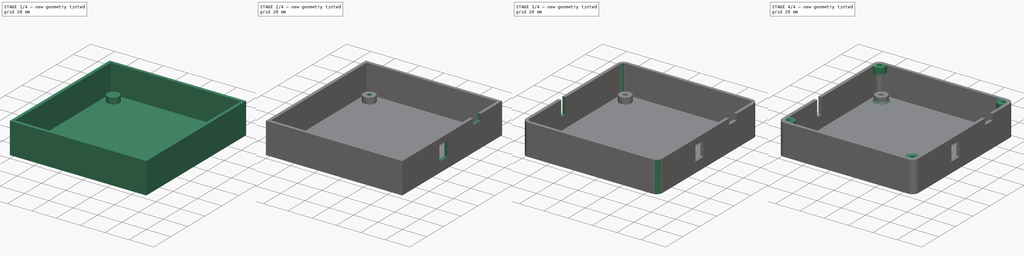
[diagram: build sequence overview — one tinted view per stage of 4, left to right]
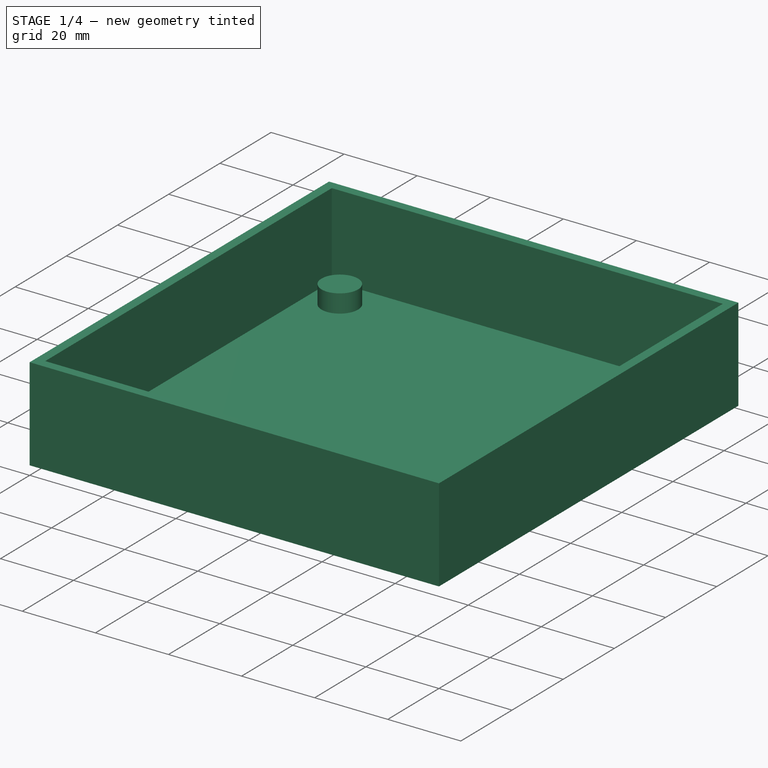
[diagram: stage 1 of 4 — iso view after this stage's code; geometry added in this stage tinted green]
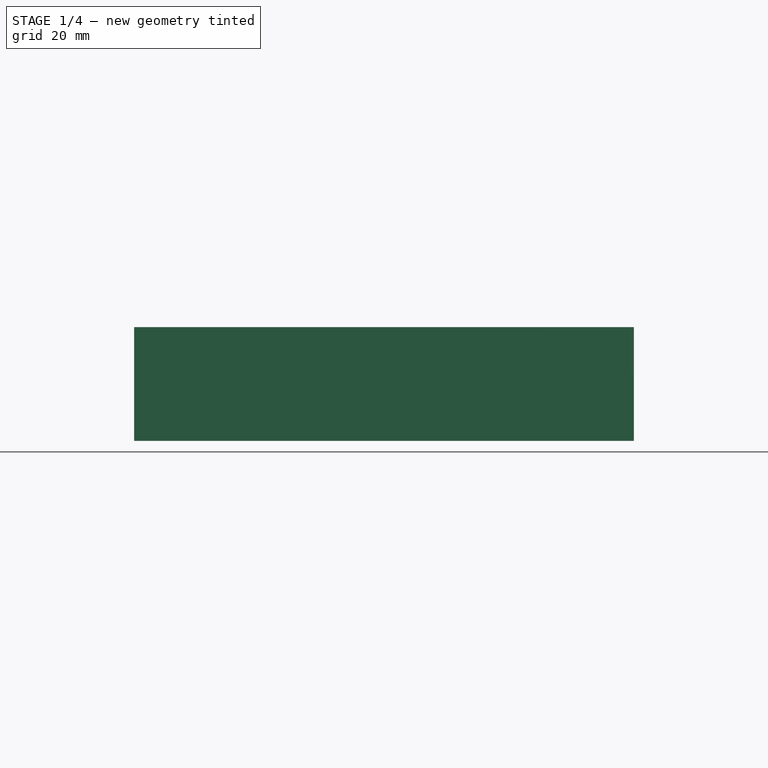
[diagram: stage 1 of 4 — front view after this stage's code; geometry added in this stage tinted green]
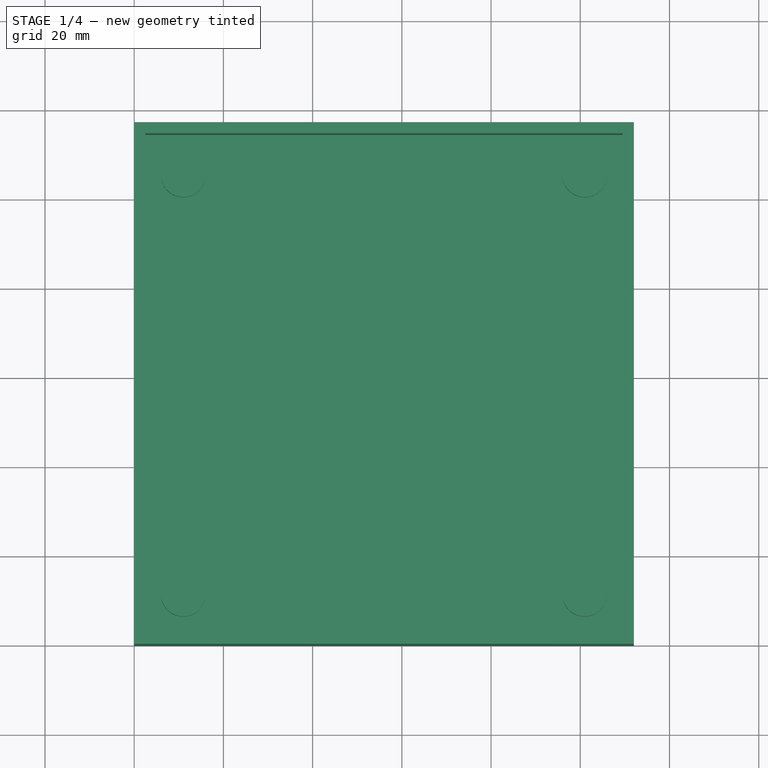
[diagram: stage 1 of 4 — top view after this stage's code; geometry added in this stage tinted green]
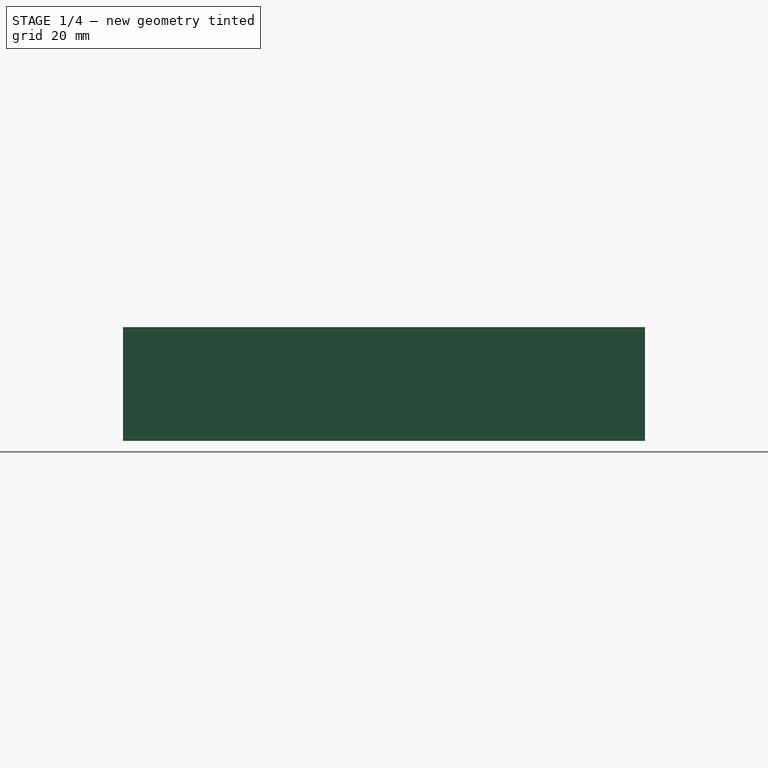
[diagram: stage 1 of 4 — right view after this stage's code; geometry added in this stage tinted green]
FCSTD DOCUMENT  (FreeCAD 0.18R16146 (Git))
Label: case
License: All rights reserved
LicenseURL: http://en.wikipedia.org/wiki/All_rights_reserved
objects: Sketcher::SketchObject×10, PartDesign::Pocket×7, PartDesign::Pad×3, PartDesign::Fillet×3, PartDesign::Body×1
note: 34 computed .brp shape members not serialized (recipe doc carries the construction recipe); baked Part::Feature solids carry a one-line shape summary decoded from their .brp

FEATURE [Sketcher::SketchObject] Sketch
  MapMode = 5
  Support = -> [XY_Plane]
  sketch-geometry (4):
    g0: LineSegment StartX=0 StartY=0 StartZ=0 EndX=112 EndY=0 EndZ=0
    g1: LineSegment StartX=112 StartY=0 StartZ=0 EndX=112 EndY=117 EndZ=0
    g2: LineSegment StartX=112 StartY=117 StartZ=0 EndX=0 EndY=117 EndZ=0
    g3: LineSegment StartX=0 StartY=117 StartZ=0 EndX=0 EndY=0 EndZ=0
  constraints (11):
    c: Coincident(g0,g1)
    c: Coincident(g1,g2)
    c: Coincident(g2,g3)
    c: Coincident(g3,g0)
    c: Horizontal(g0)
    c: Horizontal(g2)
    c: Vertical(g1)
    c: Vertical(g3)
    c: Coincident(g0,g-1)
    c: DistanceX(g0,g0) = 112
    c: DistanceY(g1,g1) = 117
FEATURE [PartDesign::Pad] Pad
  Length = 25.5
  Length2 = 100
  Profile = -> Sketch
  Type = 0
FEATURE [Sketcher::SketchObject] Sketch001
  MapMode = 5
  Placement = pos=(0,0,25.5) rot=(0,0,1;0rad)
  Support = -> [Pad]
  sketch-geometry (4):
    g0: LineSegment StartX=2.5 StartY=114.5 StartZ=0 EndX=109.5 EndY=114.5 EndZ=0
    g1: LineSegment StartX=109.5 StartY=114.5 StartZ=0 EndX=109.5 EndY=2.5 EndZ=0
    g2: LineSegment StartX=109.5 StartY=2.5 StartZ=0 EndX=2.5 EndY=2.5 EndZ=0
    g3: LineSegment StartX=2.5 StartY=2.5 StartZ=0 EndX=2.5 EndY=114.5 EndZ=0
  constraints (12):
    c: Coincident(g0,g1)
    c: Coincident(g1,g2)
    c: Coincident(g2,g3)
    c: Coincident(g3,g0)
    c: Horizontal(g0)
    c: Horizontal(g2)
    c: Vertical(g1)
    c: Vertical(g3)
    c: DistanceX(g2,g2) = 107
    c: DistanceY(g1,g1) = 112
    c: DistanceY(g2) = 2.5
    c: DistanceX(g2) = 2.5
FEATURE [PartDesign::Pocket] Pocket
  BaseFeature = -> Pad
  Length = 23
  Length2 = 100
  Profile = -> Sketch001
  Type = 0
FEATURE [Sketcher::SketchObject] Sketch002
  MapMode = 5
  Placement = pos=(0,0,2.5) rot=(0,0,1;0rad)
  Support = -> [Pocket]
  sketch-geometry (8):
    g0: LineSegment [constr] StartX=11 StartY=105.5 StartZ=0 EndX=101 EndY=105.5 EndZ=0
    g1: LineSegment [constr] StartX=101 StartY=105.5 StartZ=0 EndX=101 EndY=11.5 EndZ=0
    g2: LineSegment [constr] StartX=101 StartY=11.5 StartZ=0 EndX=11 EndY=11.5 EndZ=0
    g3: LineSegment [constr] StartX=11 StartY=11.5 StartZ=0 EndX=11 EndY=105.5 EndZ=0
    g4: Circle CenterX=11 CenterY=105.5 CenterZ=0 NormalX=0 NormalY=0 NormalZ=1 AngleXU=0 Radius=5
    g5: Circle CenterX=101 CenterY=105.5 CenterZ=0 NormalX=0 NormalY=0 NormalZ=1 AngleXU=0 Radius=5
    g6: Circle CenterX=101 CenterY=11.5 CenterZ=0 NormalX=0 NormalY=0 NormalZ=1 AngleXU=0 Radius=5
    g7: Circle CenterX=11 CenterY=11.5 CenterZ=0 NormalX=0 NormalY=0 NormalZ=1 AngleXU=0 Radius=5
  constraints (20):
    c: Coincident(g0,g1)
    c: Coincident(g1,g2)
    c: Coincident(g2,g3)
    c: Coincident(g3,g0)
    c: Horizontal(g0)
    c: Horizontal(g2)
    c: Vertical(g1)
    c: Vertical(g3)
    c: DistanceX(g2,g2) = 90
    c: DistanceY(g1,g1) = 94
    c: DistanceX(g2) = 11
    c: DistanceY(g2) = 11.5
    c: Coincident(g4,g0)
    c: Coincident(g5,g0)
    c: Coincident(g6,g1)
    c: Coincident(g7,g2)
    c: Equal(g7,g6)
    c: Equal(g6,g5)
    c: Equal(g5,g4)
    c: Radius(g5) = 5
FEATURE [PartDesign::Pad] Pad001
  BaseFeature = -> Pocket
  Length = 5
  Length2 = 100
  Profile = -> Sketch002
  Type = 0
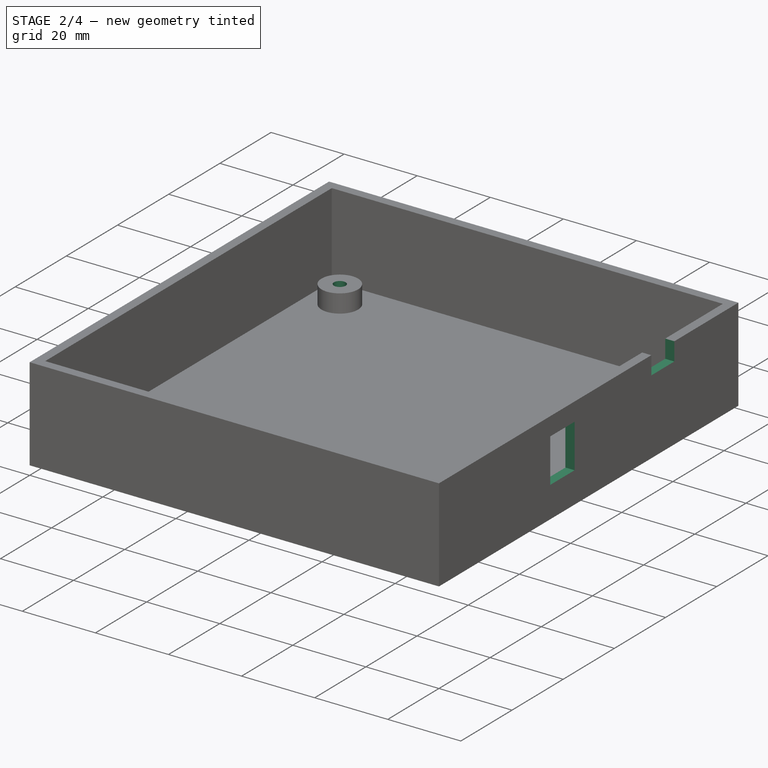
[diagram: stage 2 of 4 — iso view after this stage's code; geometry added in this stage tinted green]
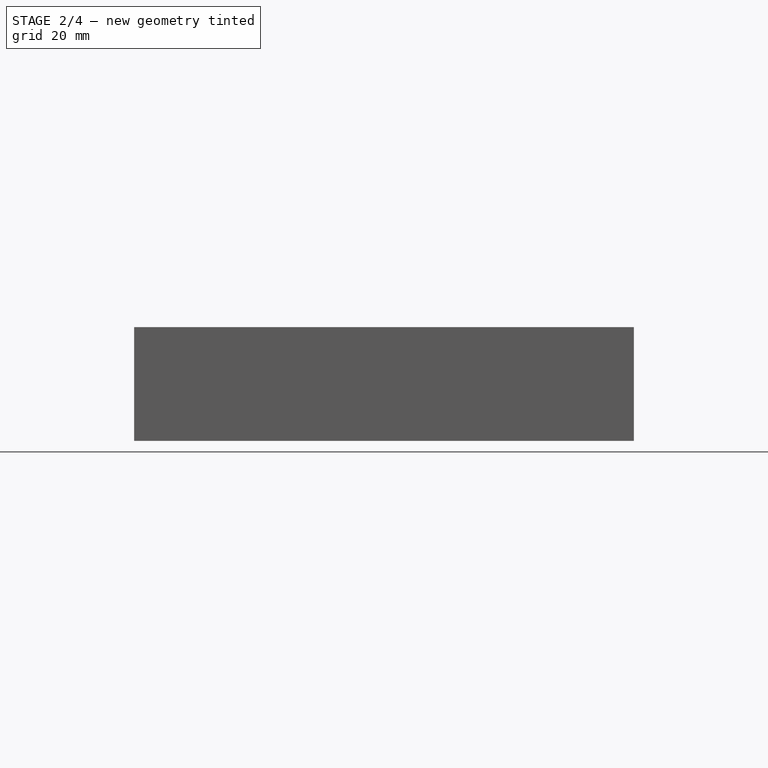
[diagram: stage 2 of 4 — front view after this stage's code; geometry added in this stage tinted green]
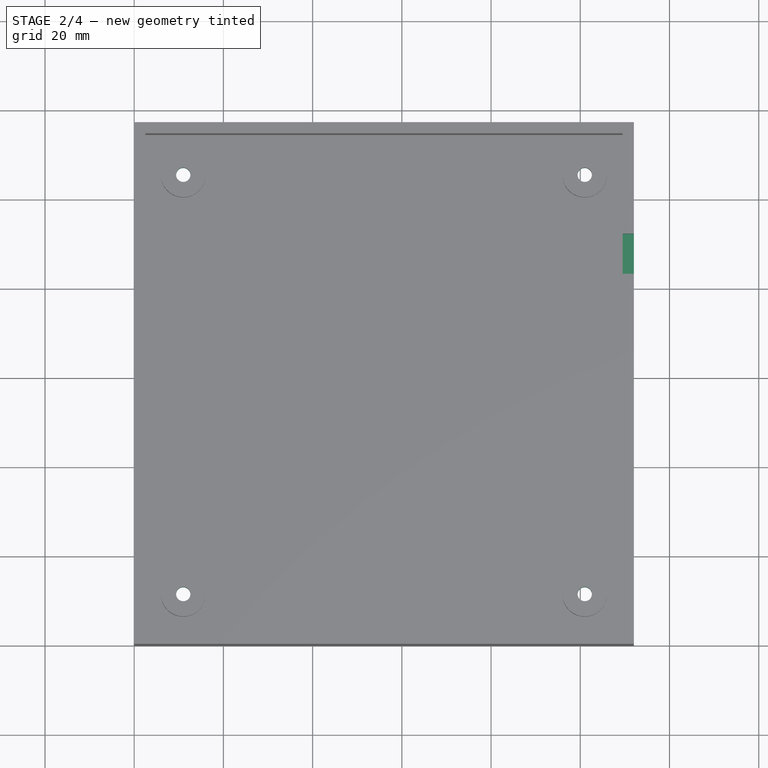
[diagram: stage 2 of 4 — top view after this stage's code; geometry added in this stage tinted green]
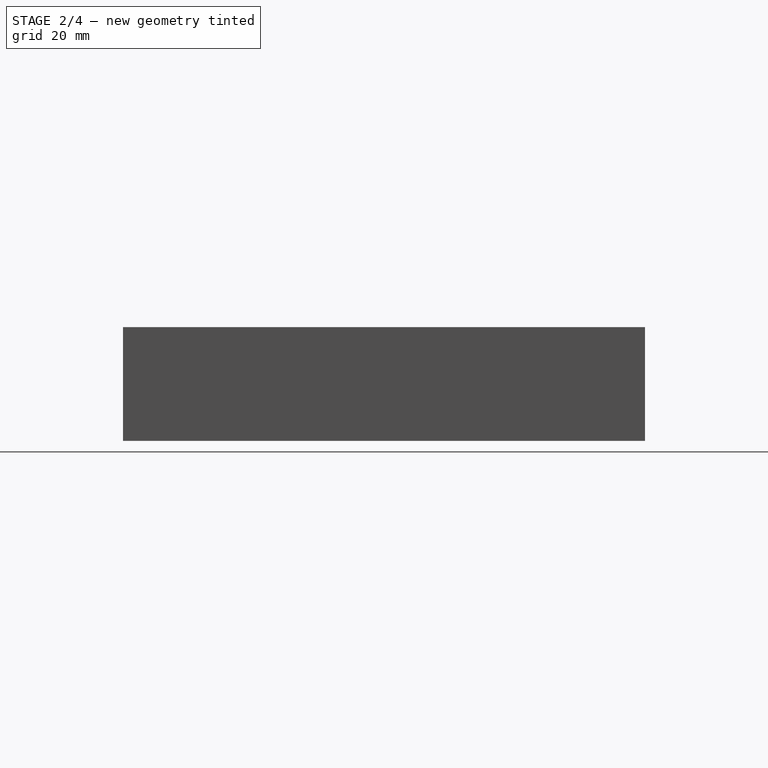
[diagram: stage 2 of 4 — right view after this stage's code; geometry added in this stage tinted green]
FEATURE [Sketcher::SketchObject] Sketch003
  MapMode = 5
  Placement = pos=(0,0,0) rot=(1,0,0;3.14159rad)
  Support = -> [Pad001]
  sketch-geometry (8):
    g0: LineSegment [constr] StartX=11 StartY=-11.5 StartZ=0 EndX=101 EndY=-11.5 EndZ=0
    g1: LineSegment [constr] StartX=101 StartY=-11.5 StartZ=0 EndX=101 EndY=-105.5 EndZ=0
    g2: LineSegment [constr] StartX=101 StartY=-105.5 StartZ=0 EndX=11 EndY=-105.5 EndZ=0
    g3: LineSegment [constr] StartX=11 StartY=-105.5 StartZ=0 EndX=11 EndY=-11.5 EndZ=0
    g4: Circle CenterX=11 CenterY=-11.5 CenterZ=0 NormalX=0 NormalY=0 NormalZ=1 AngleXU=0 Radius=1.6
    g5: Circle CenterX=101 CenterY=-11.5 CenterZ=0 NormalX=0 NormalY=0 NormalZ=1 AngleXU=0 Radius=1.6
    g6: Circle CenterX=101 CenterY=-105.5 CenterZ=0 NormalX=0 NormalY=0 NormalZ=1 AngleXU=0 Radius=1.6
    g7: Circle CenterX=11 CenterY=-105.5 CenterZ=0 NormalX=0 NormalY=0 NormalZ=1 AngleXU=0 Radius=1.6
  constraints (20):
    c: Coincident(g0,g1)
    c: Coincident(g1,g2)
    c: Coincident(g2,g3)
    c: Coincident(g3,g0)
    c: Horizontal(g0)
    c: Horizontal(g2)
    c: Vertical(g1)
    c: Vertical(g3)
    c: DistanceX(g0,g0) = 90
    c: DistanceY(g1,g1) = 94
    c: DistanceY(g0,g-1) = 11.5
    c: DistanceX(g-1,g0) = 11
    c: Coincident(g4,g0)
    c: Coincident(g5,g0)
    c: Coincident(g6,g1)
    c: Coincident(g7,g2)
    c: Equal(g7,g4)
    c: Equal(g4,g5)
    c: Equal(g5,g6)
    c: Radius(g5) = 1.6
FEATURE [PartDesign::Pocket] Pocket001
  BaseFeature = -> Pad001
  Length = 5
  Length2 = 100
  Profile = -> Sketch003
  Type = 1
FEATURE [Sketcher::SketchObject] Sketch004
  MapMode = 5
  Placement = pos=(0,0,0) rot=(1,0,0;3.14159rad)
  Support = -> [Pocket001]
  sketch-geometry (32):
    g0: LineSegment [constr] StartX=11 StartY=-11.5 StartZ=0 EndX=101 EndY=-11.5 EndZ=0
    g1: LineSegment [constr] StartX=101 StartY=-11.5 StartZ=0 EndX=101 EndY=-105.5 EndZ=0
    g2: LineSegment [constr] StartX=101 StartY=-105.5 StartZ=0 EndX=11 EndY=-105.5 EndZ=0
    g3: LineSegment [constr] StartX=11 StartY=-105.5 StartZ=0 EndX=11 EndY=-11.5 EndZ=0
    g4: LineSegment StartX=13.0207 StartY=-15 StartZ=0 EndX=15.0415 EndY=-11.5 EndZ=0
    g5: LineSegment StartX=15.0415 StartY=-11.5 StartZ=0 EndX=13.0207 EndY=-8 EndZ=0
    g6: LineSegment StartX=13.0207 StartY=-8 StartZ=0 EndX=8.97927 EndY=-8 EndZ=0
    g7: LineSegment StartX=8.97927 StartY=-8 StartZ=0 EndX=6.95855 EndY=-11.5 EndZ=0
    g8: LineSegment StartX=6.95855 StartY=-11.5 StartZ=0 EndX=8.97927 EndY=-15 EndZ=0
    g9: LineSegment StartX=8.97927 StartY=-15 StartZ=0 EndX=13.0207 EndY=-15 EndZ=0
    g10: Circle [constr] CenterX=11 CenterY=-11.5 CenterZ=0 NormalX=0 NormalY=0 NormalZ=1 AngleXU=0 Radius=4.04145
    g11: LineSegment StartX=103.021 StartY=-15 StartZ=0 EndX=105.041 EndY=-11.5 EndZ=0
    g12: LineSegment StartX=105.041 StartY=-11.5 StartZ=0 EndX=103.021 EndY=-8 EndZ=0
    g13: LineSegment StartX=103.021 StartY=-8 StartZ=0 EndX=98.9793 EndY=-8 EndZ=0
    g14: LineSegment StartX=98.9793 StartY=-8 StartZ=0 EndX=96.9585 EndY=-11.5 EndZ=0
    g15: LineSegment StartX=96.9585 StartY=-11.5 StartZ=0 EndX=98.9793 EndY=-15 EndZ=0
    g16: LineSegment StartX=98.9793 StartY=-15 StartZ=0 EndX=103.021 EndY=-15 EndZ=0
    g17: Circle [constr] CenterX=101 CenterY=-11.5 CenterZ=0 NormalX=0 NormalY=0 NormalZ=1 AngleXU=0 Radius=4.04145
    g18: LineSegment StartX=103.021 StartY=-109 StartZ=0 EndX=105.041 EndY=-105.5 EndZ=0
    g19: LineSegment StartX=105.041 StartY=-105.5 StartZ=0 EndX=103.021 EndY=-102 EndZ=0
    g20: LineSegment StartX=103.021 StartY=-102 StartZ=0 EndX=98.9793 EndY=-102 EndZ=0
    g21: LineSegment StartX=98.9793 StartY=-102 StartZ=0 EndX=96.9585 EndY=-105.5 EndZ=0
    g22: LineSegment StartX=96.9585 StartY=-105.5 StartZ=0 EndX=98.9793 EndY=-109 EndZ=0
    g23: LineSegment StartX=98.9793 StartY=-109 StartZ=0 EndX=103.021 EndY=-109 EndZ=0
    g24: Circle [constr] CenterX=101 CenterY=-105.5 CenterZ=0 NormalX=0 NormalY=0 NormalZ=1 AngleXU=0 Radius=4.04145
    g25: LineSegment StartX=13.0207 StartY=-109 StartZ=0 EndX=15.0415 EndY=-105.5 EndZ=0
    g26: LineSegment StartX=15.0415 StartY=-105.5 StartZ=0 EndX=13.0207 EndY=-102 EndZ=0
    g27: LineSegment StartX=13.0207 StartY=-102 StartZ=0 EndX=8.97927 EndY=-102 EndZ=0
    g28: LineSegment StartX=8.97927 StartY=-102 StartZ=0 EndX=6.95855 EndY=-105.5 EndZ=0
    g29: LineSegment StartX=6.95855 StartY=-105.5 StartZ=0 EndX=8.97927 EndY=-109 EndZ=0
    g30: LineSegment StartX=8.97927 StartY=-109 StartZ=0 EndX=13.0207 EndY=-109 EndZ=0
    g31: Circle [constr] CenterX=11 CenterY=-105.5 CenterZ=0 NormalX=0 NormalY=0 NormalZ=1 AngleXU=0 Radius=4.04145
  constraints (76):
    c: Coincident(g0,g1)
    c: Coincident(g1,g2)
    c: Coincident(g2,g3)
    c: Coincident(g3,g0)
    c: Horizontal(g0)
    c: Horizontal(g2)
    c: Vertical(g1)
    c: Vertical(g3)
    c: DistanceX(g0,g0) = 90
    c: DistanceY(g1,g1) = 94
    c: DistanceY(g0,g-1) = 11.5
    c: DistanceX(g-1,g0) = 11
    c: Coincident(g4,g5)
    c: Coincident(g5,g6)
    c: Coincident(g6,g7)
    c: Coincident(g7,g8)
    c: Coincident(g8,g9)
    c: Coincident(g9,g4)
    c: Equal(g4, g5-g9) x5
    c: PointOnObject(g4,g10)
    c: PointOnObject(g5,g10)
    c: PointOnObject(g6,g10)
    c: PointOnObject(g7,g10)
    c: PointOnObject(g8,g10)
    c: PointOnObject(g9,g10)
    c: Coincident(g10,g0)
    c: Coincident(g11,g12)
    c: Coincident(g12,g13)
    c: Coincident(g13,g14)
    c: Coincident(g14,g15)
    c: Coincident(g15,g16)
    c: Coincident(g16,g11)
    c: Equal(g11, g12-g16) x5
    c: PointOnObject(g11,g17)
    c: PointOnObject(g12,g17)
    c: PointOnObject(g13,g17)
    c: PointOnObject(g14,g17)
    c: PointOnObject(g15,g17)
    c: PointOnObject(g16,g17)
    c: Coincident(g17,g0)
    c: Coincident(g18,g19)
    c: Coincident(g19,g20)
    c: Coincident(g20,g21)
    c: Coincident(g21,g22)
    c: Coincident(g22,g23)
    c: Coincident(g23,g18)
    c: Equal(g18, g19-g23) x5
    c: PointOnObject(g18,g24)
    c: PointOnObject(g19,g24)
    c: PointOnObject(g20,g24)
    c: PointOnObject(g21,g24)
    c: PointOnObject(g22,g24)
    c: PointOnObject(g23,g24)
    c: Coincident(g24,g1)
    c: Coincident(g25,g26)
    c: Coincident(g26,g27)
    c: Coincident(g27,g28)
    c: Coincident(g28,g29)
    c: Coincident(g29,g30)
    c: Coincident(g30,g25)
    c: Equal(g25, g26-g30) x5
    c: PointOnObject(g25,g31)
    c: PointOnObject(g26,g31)
    c: PointOnObject(g27,g31)
    c: PointOnObject(g28,g31)
    c: PointOnObject(g29,g31)
    c: PointOnObject(g30,g31)
    c: Coincident(g31,g2)
    c: Equal(g10,g17)
    c: Equal(g17,g24)
    c: Equal(g24,g31)
    c: Horizontal(g9)
    c: Horizontal(g16)
    c: Horizontal(g20)
    c: Horizontal(g27)
    c: Distance(g15,g11) = 7
FEATURE [PartDesign::Pocket] Pocket002
  BaseFeature = -> Pocket001
  Length = 1.5
  Length2 = 100
  Profile = -> Sketch004
  Type = 0
FEATURE [Sketcher::SketchObject] Sketch005
  MapMode = 5
  Placement = pos=(112,0,0) rot=(0.57735,0.57735,0.57735;2.0944rad)
  Support = -> [Pocket002]
  sketch-geometry (8):
    g0: LineSegment StartX=43.5 StartY=20.5 StartZ=0 EndX=53 EndY=20.5 EndZ=0
    g1: LineSegment StartX=53 StartY=20.5 StartZ=0 EndX=53 EndY=8.5 EndZ=0
    g2: LineSegment StartX=53 StartY=8.5 StartZ=0 EndX=43.5 EndY=8.5 EndZ=0
    g3: LineSegment StartX=43.5 StartY=8.5 StartZ=0 EndX=43.5 EndY=20.5 EndZ=0
    g4: LineSegment StartX=83 StartY=25.5 StartZ=0 EndX=92 EndY=25.5 EndZ=0
    g5: LineSegment StartX=92 StartY=25.5 StartZ=0 EndX=92 EndY=20.5 EndZ=0
    g6: LineSegment StartX=92 StartY=20.5 StartZ=0 EndX=83 EndY=20.5 EndZ=0
    g7: LineSegment StartX=83 StartY=20.5 StartZ=0 EndX=83 EndY=25.5 EndZ=0
  constraints (24):
    c: Coincident(g0,g1)
    c: Coincident(g1,g2)
    c: Coincident(g2,g3)
    c: Coincident(g3,g0)
    c: Horizontal(g0)
    c: Horizontal(g2)
    c: Vertical(g1)
    c: Vertical(g3)
    c: DistanceX(g-1,g2) = 43.5
    c: DistanceX(g2,g2) = 9.5
    c: DistanceY(g2) = 8.5
    c: DistanceY(g3,g3) = 12
    c: Coincident(g4,g5)
    c: Coincident(g5,g6)
    c: Coincident(g6,g7)
    c: Coincident(g7,g4)
    c: Horizontal(g4)
    c: Horizontal(g6)
    c: Vertical(g5)
    c: Vertical(g7)
    c: DistanceX(g6) = 83
    c: DistanceX(g6,g6) = 9
    c: DistanceY(g5,g5) = 5
    c: DistanceY(g6) = 20.5
FEATURE [PartDesign::Pocket] Pocket003
  BaseFeature = -> Pocket002
  Length = 5
  Length2 = 100
  Profile = -> Sketch005
  Type = 0
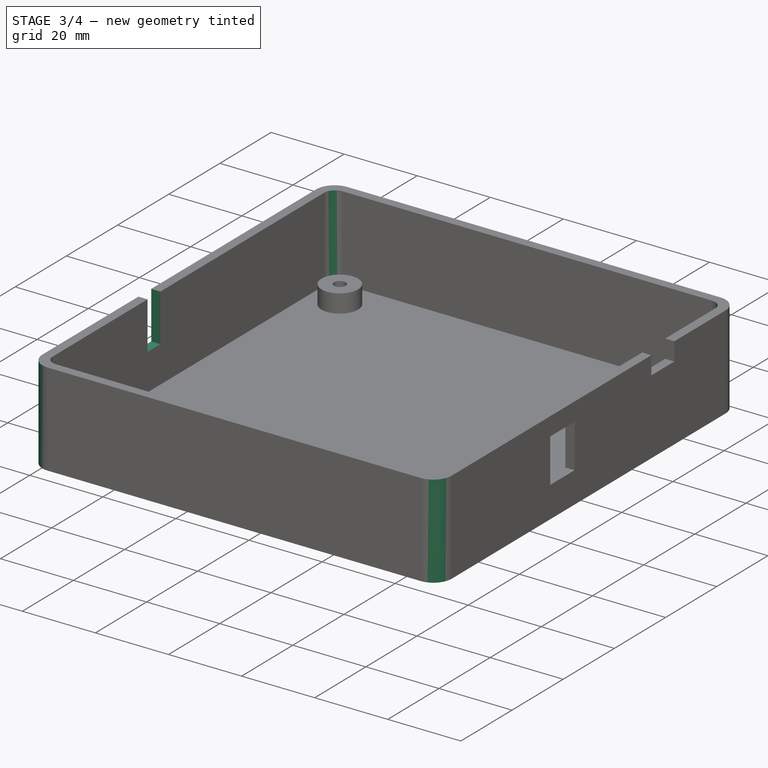
[diagram: stage 3 of 4 — iso view after this stage's code; geometry added in this stage tinted green]
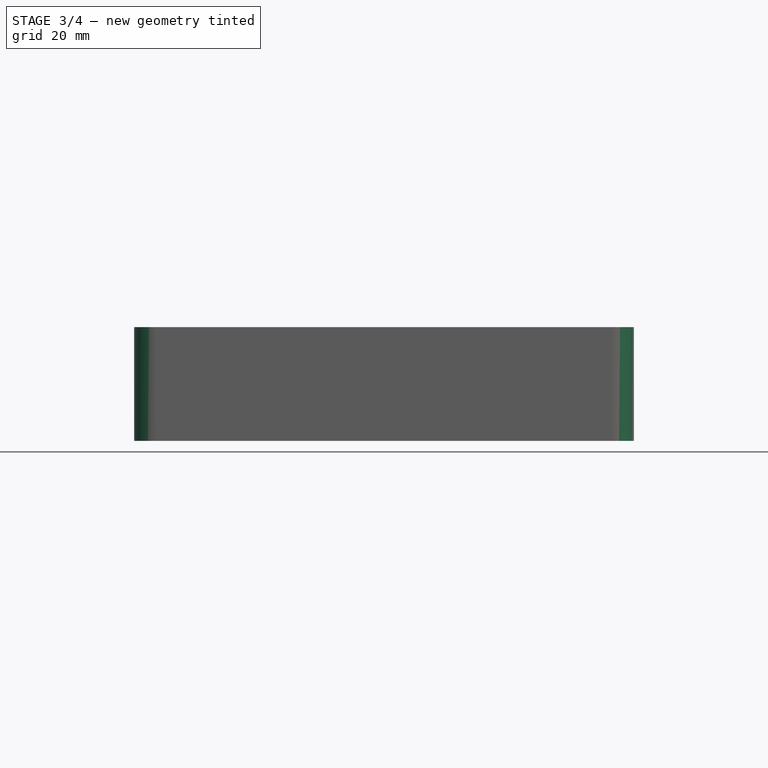
[diagram: stage 3 of 4 — front view after this stage's code; geometry added in this stage tinted green]
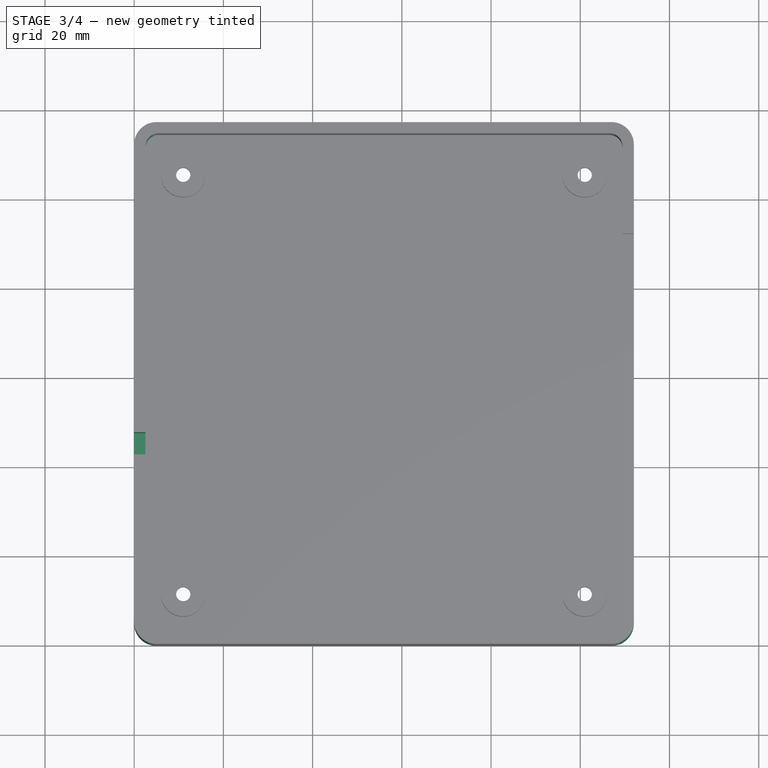
[diagram: stage 3 of 4 — top view after this stage's code; geometry added in this stage tinted green]
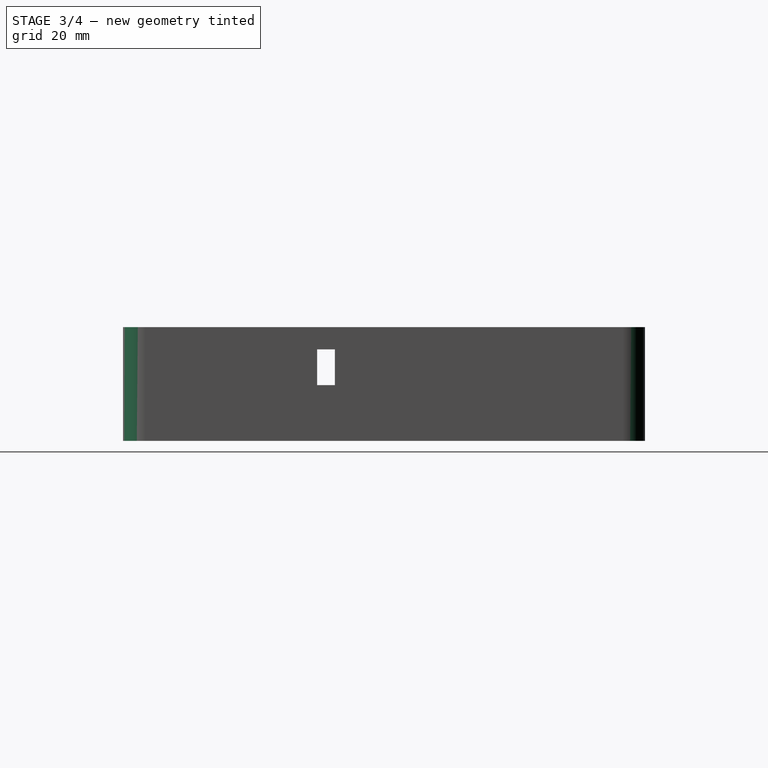
[diagram: stage 3 of 4 — right view after this stage's code; geometry added in this stage tinted green]
FEATURE [Sketcher::SketchObject] Sketch006
  MapMode = 5
  Placement = pos=(0,0,0) rot=(0.57735,-0.57735,-0.57735;2.0944rad)
  Support = -> [Pocket003]
  sketch-geometry (4):
    g0: LineSegment StartX=-47.5 StartY=25.5 StartZ=0 EndX=-42.5 EndY=25.5 EndZ=0
    g1: LineSegment StartX=-42.5 StartY=25.5 StartZ=0 EndX=-42.5 EndY=12.5 EndZ=0
    g2: LineSegment StartX=-42.5 StartY=12.5 StartZ=0 EndX=-47.5 EndY=12.5 EndZ=0
    g3: LineSegment StartX=-47.5 StartY=12.5 StartZ=0 EndX=-47.5 EndY=25.5 EndZ=0
  constraints (12):
    c: Coincident(g0,g1)
    c: Coincident(g1,g2)
    c: Coincident(g2,g3)
    c: Coincident(g3,g0)
    c: Horizontal(g0)
    c: Horizontal(g2)
    c: Vertical(g1)
    c: Vertical(g3)
    c: DistanceX(g1,g-1) = 42.5
    c: DistanceY(g1) = 12.5
    c: DistanceY(g0) = 25.5
    c: DistanceX(g2,g2) = 5
FEATURE [PartDesign::Pocket] Pocket004
  BaseFeature = -> Pocket003
  Length = 5
  Length2 = 100
  Profile = -> Sketch006
  Type = 0
FEATURE [Sketcher::SketchObject] Sketch007
  MapMode = 5
  Placement = pos=(0,0,0) rot=(1,0,0;3.14159rad)
  Support = -> [Pocket004]
  sketch-geometry (8):
    g0: LineSegment [constr] StartX=18.5 StartY=-21 StartZ=0 EndX=93.5 EndY=-21 EndZ=0
    g1: LineSegment [constr] StartX=93.5 StartY=-21 StartZ=0 EndX=93.5 EndY=-96 EndZ=0
    g2: LineSegment [constr] StartX=93.5 StartY=-96 StartZ=0 EndX=18.5 EndY=-96 EndZ=0
    g3: LineSegment [constr] StartX=18.5 StartY=-96 StartZ=0 EndX=18.5 EndY=-21 EndZ=0
    g4: Circle CenterX=18.5 CenterY=-21 CenterZ=0 NormalX=0 NormalY=0 NormalZ=1 AngleXU=0 Radius=6
    g5: Circle CenterX=93.5 CenterY=-21 CenterZ=0 NormalX=0 NormalY=0 NormalZ=1 AngleXU=0 Radius=6
    g6: Circle CenterX=93.5 CenterY=-96 CenterZ=0 NormalX=0 NormalY=0 NormalZ=1 AngleXU=0 Radius=6
    g7: Circle CenterX=18.5 CenterY=-96 CenterZ=0 NormalX=0 NormalY=0 NormalZ=1 AngleXU=0 Radius=6
  constraints (20):
    c: Coincident(g0,g1)
    c: Coincident(g1,g2)
    c: Coincident(g2,g3)
    c: Coincident(g3,g0)
    c: Horizontal(g0)
    c: Horizontal(g2)
    c: Vertical(g1)
    c: Vertical(g3)
    c: DistanceX(g0,g0) = 75
    c: DistanceY(g1,g1) = 75
    c: DistanceY(g0,g-1) = 21
    c: DistanceX(g-1,g0) = 18.5
    c: Coincident(g4,g0)
    c: Coincident(g5,g0)
    c: Coincident(g6,g1)
    c: Coincident(g7,g2)
    c: Equal(g6,g5)
    c: Equal(g5,g4)
    c: Equal(g4,g7)
    c: Radius(g5) = 6
FEATURE [PartDesign::Pocket] Pocket005
  BaseFeature = -> Pocket004
  Length = 1
  Length2 = 100
  Profile = -> Sketch007
  Type = 0
FEATURE [PartDesign::Fillet] Fillet
  Base = -> Pocket005 [Edge139,Edge137,Edge143,Edge140]
  BaseFeature = -> Pocket005
  Radius = 3
FEATURE [PartDesign::Fillet] Fillet001
  Base = -> Fillet [Edge45,Edge29,Edge25,Edge32]
  BaseFeature = -> Fillet
  Radius = 5
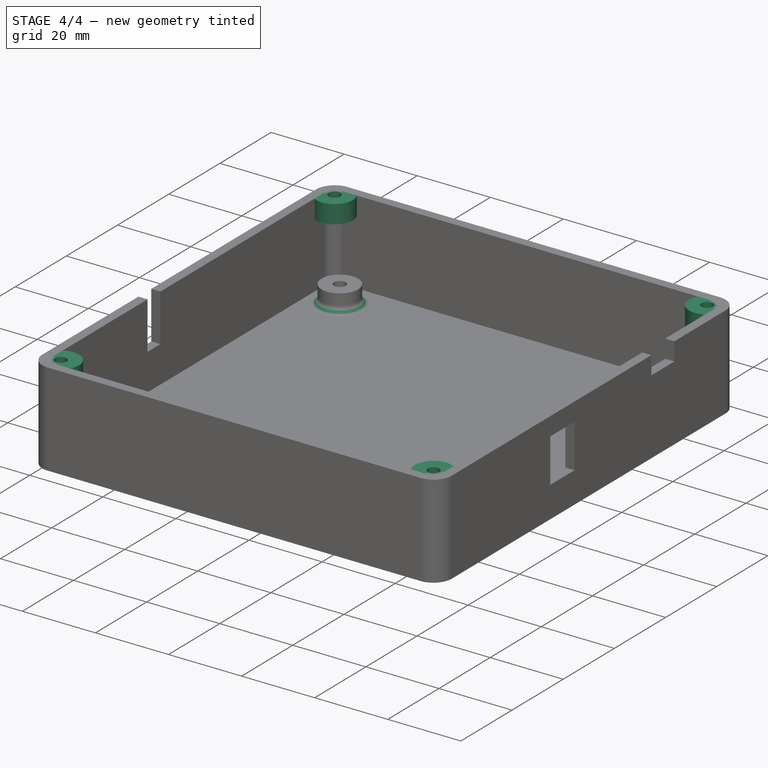
[diagram: stage 4 of 4 — iso view after this stage's code; geometry added in this stage tinted green]
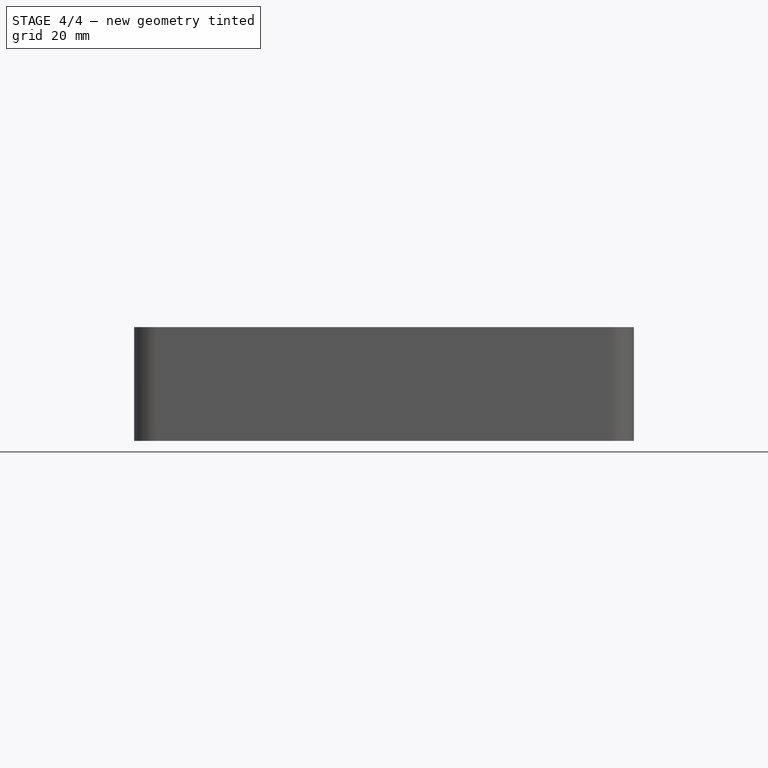
[diagram: stage 4 of 4 — front view after this stage's code; geometry added in this stage tinted green]
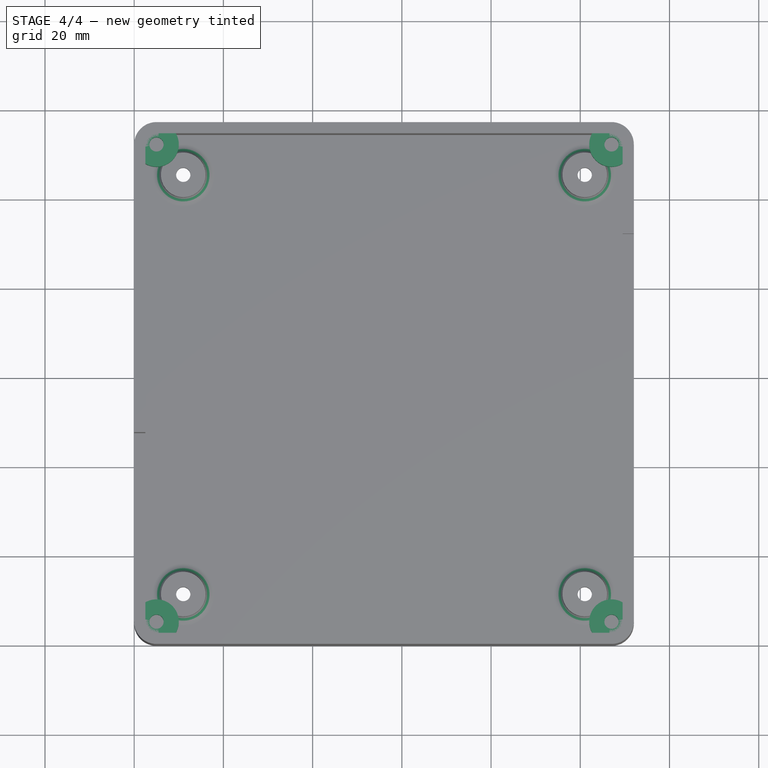
[diagram: stage 4 of 4 — top view after this stage's code; geometry added in this stage tinted green]
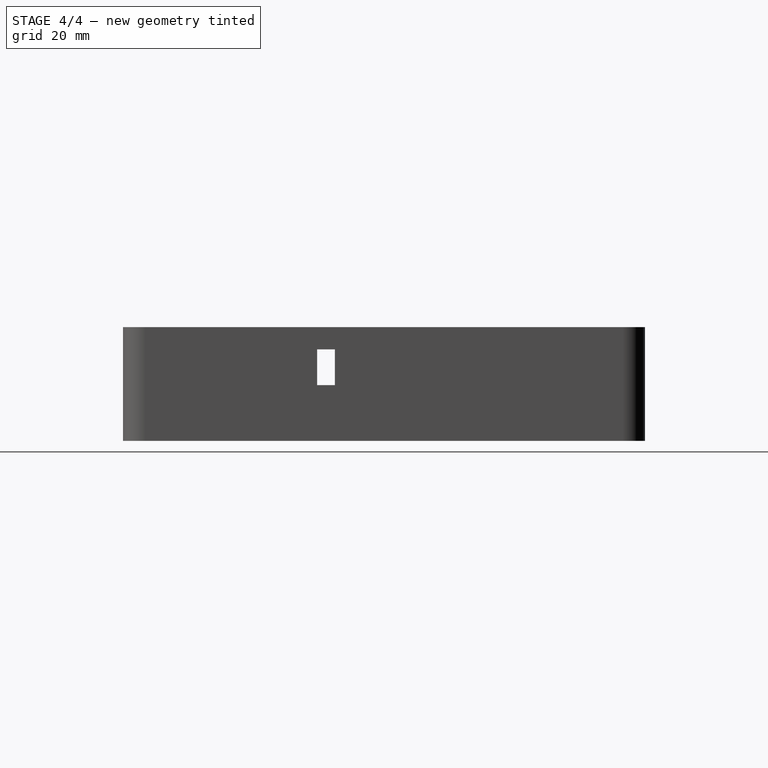
[diagram: stage 4 of 4 — right view after this stage's code; geometry added in this stage tinted green]
FEATURE [PartDesign::Fillet] Fillet002
  Base = -> Fillet001 [Edge108,Edge105,Edge106,Edge107]
  BaseFeature = -> Fillet001
  Radius = 2
FEATURE [Sketcher::SketchObject] Sketch008
  MapMode = 5
  Placement = pos=(0,0,25.5) rot=(0,0,1;0rad)
  Support = -> [Fillet002]
  sketch-geometry (8):
    g0: LineSegment [constr] StartX=5 StartY=112 StartZ=0 EndX=107 EndY=112 EndZ=0
    g1: LineSegment [constr] StartX=107 StartY=112 StartZ=0 EndX=107 EndY=5 EndZ=0
    g2: LineSegment [constr] StartX=107 StartY=5 StartZ=0 EndX=5 EndY=5 EndZ=0
    g3: LineSegment [constr] StartX=5 StartY=5 StartZ=0 EndX=5 EndY=112 EndZ=0
    g4: Circle CenterX=5 CenterY=112 CenterZ=0 NormalX=0 NormalY=0 NormalZ=1 AngleXU=0 Radius=5
    g5: Circle CenterX=107 CenterY=112 CenterZ=0 NormalX=0 NormalY=0 NormalZ=1 AngleXU=0 Radius=5
    g6: Circle CenterX=107 CenterY=5 CenterZ=0 NormalX=0 NormalY=0 NormalZ=1 AngleXU=0 Radius=5
    g7: Circle CenterX=5 CenterY=5 CenterZ=0 NormalX=0 NormalY=0 NormalZ=1 AngleXU=0 Radius=5
  constraints (20):
    c: Coincident(g0,g1)
    c: Coincident(g1,g2)
    c: Coincident(g2,g3)
    c: Coincident(g3,g0)
    c: Horizontal(g0)
    c: Horizontal(g2)
    c: Vertical(g1)
    c: Vertical(g3)
    c: DistanceX(g2) = 5
    c: DistanceX(g2,g2) = 102
    c: DistanceY(g3,g3) = 107
    c: DistanceY(g2) = 5
    c: Coincident(g4,g0)
    c: Coincident(g5,g0)
    c: Coincident(g6,g1)
    c: Coincident(g7,g2)
    c: Equal(g6,g7)
    c: Equal(g7,g5)
    c: Equal(g5,g4)
    c: Radius(g5) = 5
FEATURE [PartDesign::Pad] Pad002
  BaseFeature = -> Fillet002
  Length = 5
  Length2 = 100
  Profile = -> Sketch008
  Reversed = true
  Type = 0
FEATURE [Sketcher::SketchObject] Sketch009
  MapMode = 5
  Placement = pos=(0,0,25.5) rot=(0,0,1;0rad)
  Support = -> [Pad002]
  sketch-geometry (8):
    g0: LineSegment [constr] StartX=5 StartY=112 StartZ=0 EndX=107 EndY=112 EndZ=0
    g1: LineSegment [constr] StartX=107 StartY=112 StartZ=0 EndX=107 EndY=5 EndZ=0
    g2: LineSegment [constr] StartX=107 StartY=5 StartZ=0 EndX=5 EndY=5 EndZ=0
    g3: LineSegment [constr] StartX=5 StartY=5 StartZ=0 EndX=5 EndY=112 EndZ=0
    g4: Circle CenterX=5 CenterY=112 CenterZ=0 NormalX=0 NormalY=0 NormalZ=1 AngleXU=0 Radius=1.6
    g5: Circle CenterX=107 CenterY=112 CenterZ=0 NormalX=0 NormalY=0 NormalZ=1 AngleXU=0 Radius=1.6
    g6: Circle CenterX=107 CenterY=5 CenterZ=0 NormalX=0 NormalY=0 NormalZ=1 AngleXU=0 Radius=1.6
    g7: Circle CenterX=5 CenterY=5 CenterZ=0 NormalX=0 NormalY=0 NormalZ=1 AngleXU=0 Radius=1.6
  constraints (20):
    c: Coincident(g0,g1)
    c: Coincident(g1,g2)
    c: Coincident(g2,g3)
    c: Coincident(g3,g0)
    c: Horizontal(g0)
    c: Horizontal(g2)
    c: Vertical(g1)
    c: Vertical(g3)
    c: DistanceX(g2,g2) = 102
    c: DistanceY(g1,g1) = 107
    c: DistanceX(g2) = 5
    c: DistanceY(g2) = 5
    c: Coincident(g4,g0)
    c: Coincident(g5,g0)
    c: Coincident(g6,g1)
    c: Coincident(g7,g2)
    c: Equal(g7,g4)
    c: Equal(g4,g5)
    c: Equal(g5,g6)
    c: Radius(g5) = 1.6
FEATURE [PartDesign::Pocket] Pocket006
  BaseFeature = -> Pad002
  Length = 5
  Length2 = 100
  Profile = -> Sketch009
  Type = 0
FEATURE [PartDesign::Body] Body
  Group = -> [Sketch,Pad,Sketch001,Pocket,Sketch002,Pad001,Sketch003,Pocket001,Sketch004,Pocket002,Sketch005,Pocket003,Sketch006,Pocket004,Sketch007,Pocket005,Fillet,Fillet001,Fillet002,Sketch008,Pad002,Sketch009,Pocket006]
  Origin = -> Origin
  Tip = -> Pocket006
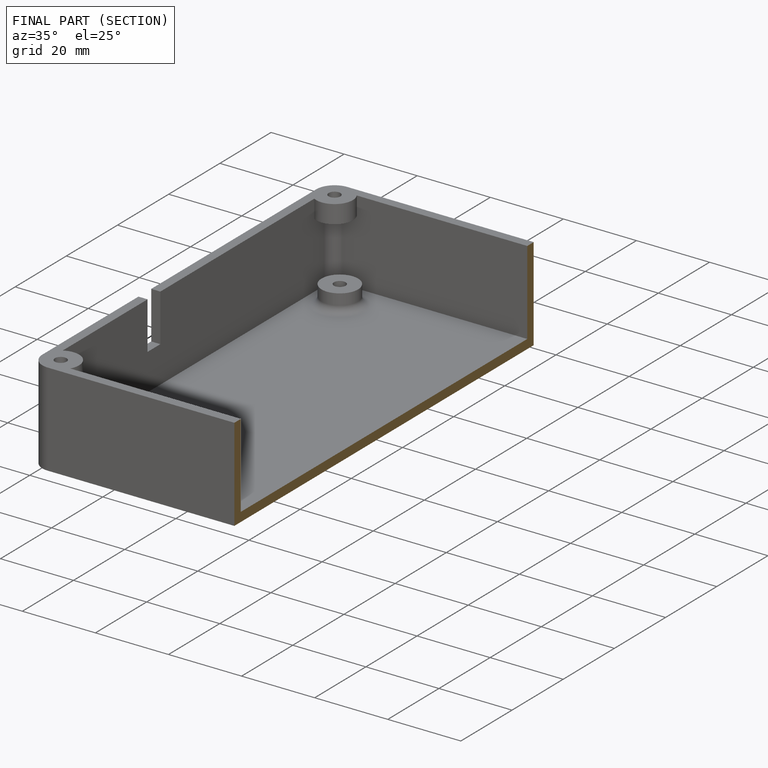
[diagram: finished part — half-section view (interior)]
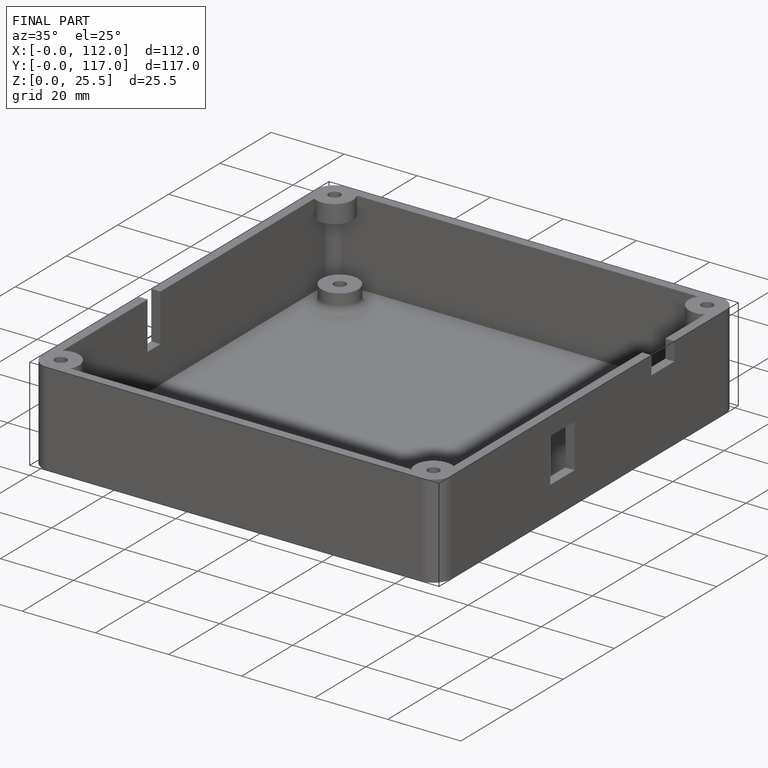
[diagram: finished part — iso view with bounding-box wireframe]
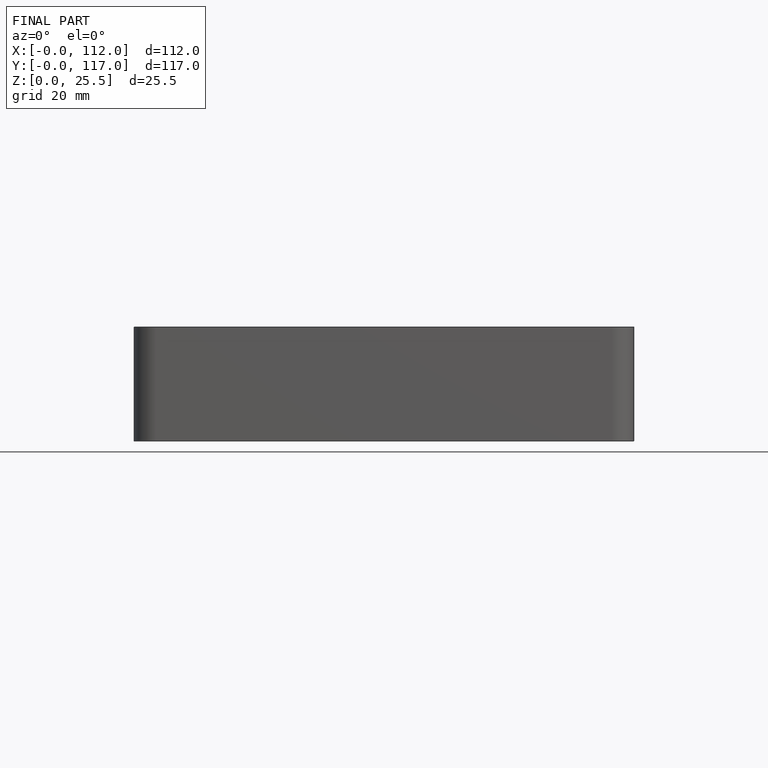
[diagram: finished part — front view with bounding-box wireframe]
